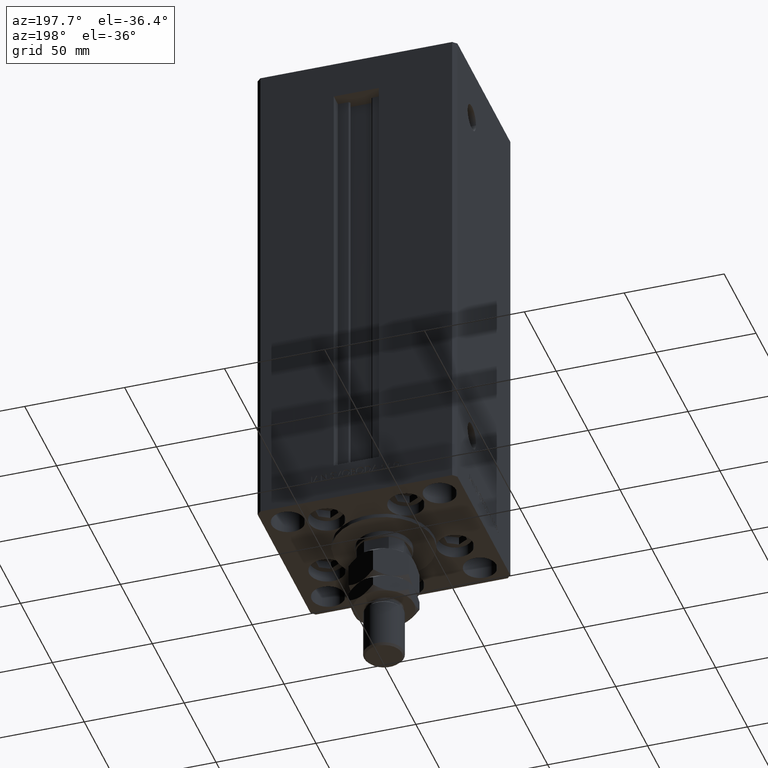
[diagram: clean part render]
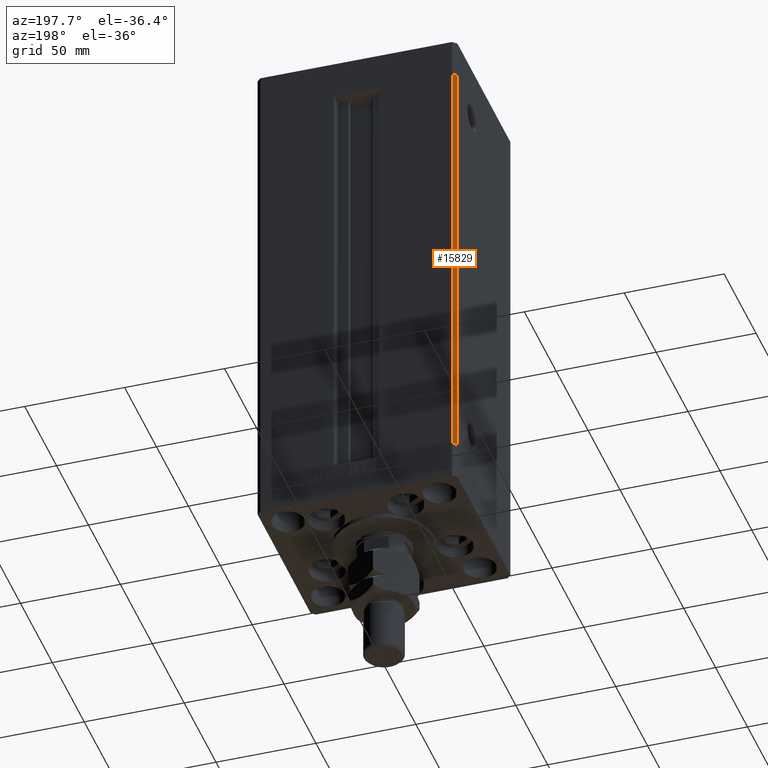
[diagram: same view with one face highlighted and labeled with its STEP entity id]
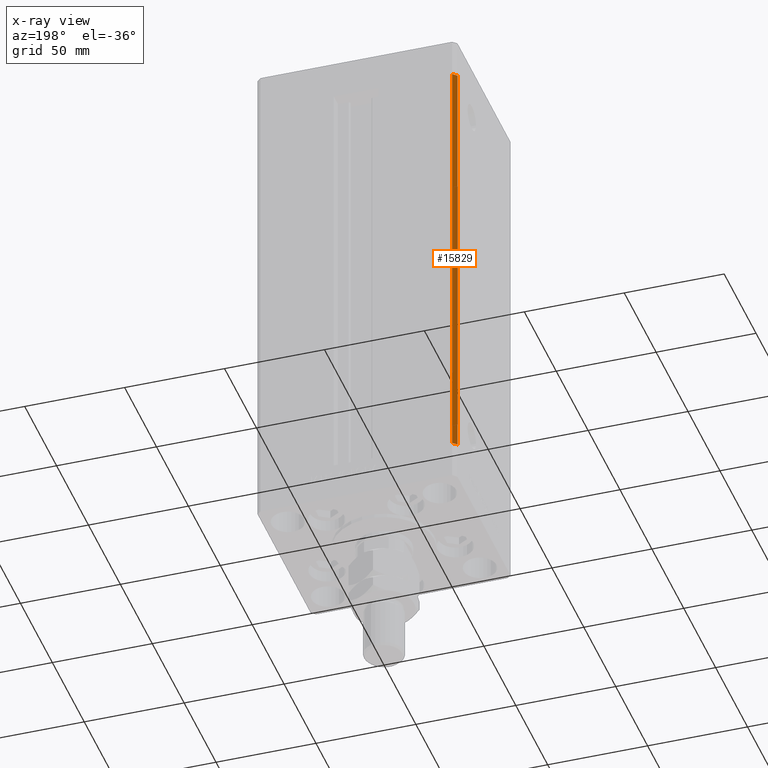
[diagram: x-ray of the same camera — body ghosted, the highlighted face saturated]
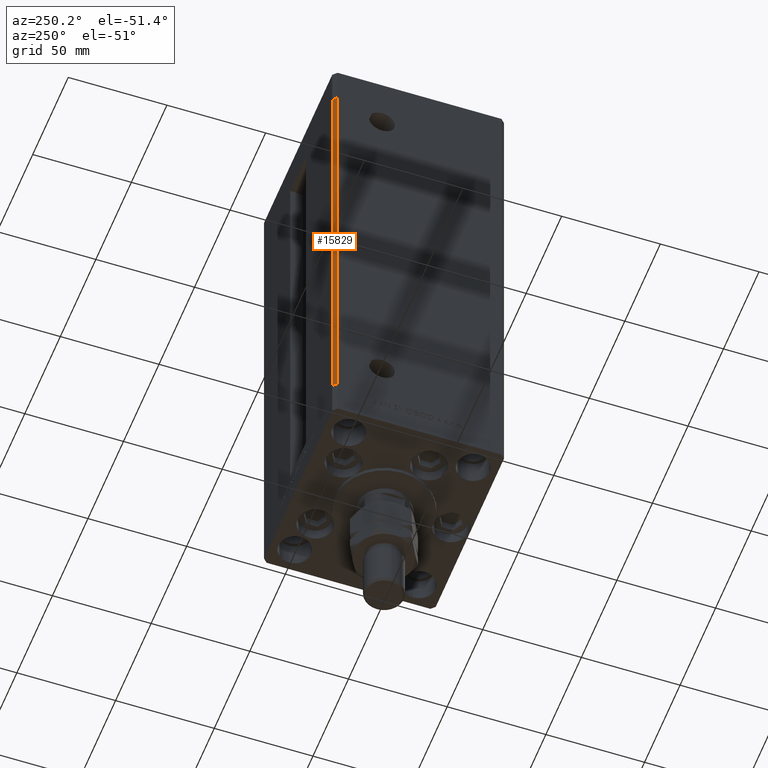
[diagram: same view with one face highlighted and labeled with its STEP entity id]
A machine part, auxiliary view. The second image highlights one B-rep face of the part: STEP entity #15829.
The next image is the same camera in x-ray: the body ghosted, the highlighted face saturated — about 0% of this face is hidden behind the body in this view.
A second angle (auxiliary view) of the same face is appended — the face is thin or edge-on in the first view.
In plain terms, the highlighted planar face has unit normal (0.7071, -0.7071, 0).
Its self-contained STEP definition (entity closure, byte-faithful):
#206 = DIRECTION ( 'NONE',  ( -0.000000000000000000, -0.000000000000000000, -1.000000000000000000 ) ) ;
#952 = CARTESIAN_POINT ( 'NONE',  ( -48.00000000000000711, 43.50000000000000000, 0.000000000000000000 ) ) ;
#1962 = DIRECTION ( 'NONE',  ( 0.7071067811865486830, 0.7071067811865463515, 0.000000000000000000 ) ) ;
#3538 = LINE ( 'NONE', #28088, #33914 ) ;
#5429 = CARTESIAN_POINT ( 'NONE',  ( -50.00000000000001421, 41.49999999999999289, 218.5000000000000000 ) ) ;
#6164 = EDGE_CURVE ( 'NONE', #38918, #44430, #24645, .T. ) ;
#7176 = ORIENTED_EDGE ( 'NONE', *, *, #8260, .F. ) ;
#8260 = EDGE_CURVE ( 'NONE', #38918, #44384, #3538, .T. ) ;
#9793 = DIRECTION ( 'NONE',  ( 0.7071067811865463515, -0.7071067811865486830, 0.000000000000000000 ) ) ;
#12588 = ORIENTED_EDGE ( 'NONE', *, *, #38078, .F. ) ;
#12620 = CARTESIAN_POINT ( 'NONE',  ( -48.00000000000000711, 43.50000000000000000, 218.5000000000000000 ) ) ;
#15829 = ADVANCED_FACE ( 'NONE', ( #17114 ), #32823, .F. ) ;
#16288 = DIRECTION ( 'NONE',  ( -0.000000000000000000, -0.000000000000000000, -1.000000000000000000 ) ) ;
#17114 = FACE_OUTER_BOUND ( 'NONE', #36642, .T. ) ;
#17174 = CARTESIAN_POINT ( 'NONE',  ( -48.00000000000000711, 43.50000000000000000, 0.000000000000000000 ) ) ;
#19459 = DIRECTION ( 'NONE',  ( -0.7071067811865487940, -0.7071067811865463515, 0.000000000000000000 ) ) ;
#20054 = CARTESIAN_POINT ( 'NONE',  ( -50.00000000000001421, 41.49999999999999289, 218.5000000000000000 ) ) ;
#20801 = LINE ( 'NONE', #952, #27130 ) ;
#21442 = VERTEX_POINT ( 'NONE', #35851 ) ;
#21633 = ORIENTED_EDGE ( 'NONE', *, *, #6164, .T. ) ;
#23451 = LINE ( 'NONE', #20054, #23700 ) ;
#23700 = VECTOR ( 'NONE', #206, 1000.000000000000000 ) ;
#24645 = LINE ( 'NONE', #12620, #48039 ) ;
#25654 = CARTESIAN_POINT ( 'NONE',  ( -48.00000000000000711, 43.50000000000000000, 218.5000000000000000 ) ) ;
#27130 = VECTOR ( 'NONE', #29157, 1000.000000000000000 ) ;
#28088 = CARTESIAN_POINT ( 'NONE',  ( -48.00000000000000711, 43.50000000000000000, 218.5000000000000000 ) ) ;
#29157 = DIRECTION ( 'NONE',  ( -0.7071067811865487940, -0.7071067811865463515, 0.000000000000000000 ) ) ;
#32823 = PLANE ( 'NONE',  #51553 ) ;
#33911 = ORIENTED_EDGE ( 'NONE', *, *, #45303, .T. ) ;
#33914 = VECTOR ( 'NONE', #19459, 1000.000000000000000 ) ;
#35851 = CARTESIAN_POINT ( 'NONE',  ( -50.00000000000001421, 41.49999999999999289, 0.000000000000000000 ) ) ;
#36642 = EDGE_LOOP ( 'NONE', ( #33911, #12588, #7176, #21633 ) ) ;
#37256 = CARTESIAN_POINT ( 'NONE',  ( -48.00000000000000711, 43.50000000000000000, 218.5000000000000000 ) ) ;
#38078 = EDGE_CURVE ( 'NONE', #44384, #21442, #23451, .T. ) ;
#38918 = VERTEX_POINT ( 'NONE', #25654 ) ;
#44384 = VERTEX_POINT ( 'NONE', #5429 ) ;
#44430 = VERTEX_POINT ( 'NONE', #17174 ) ;
#45303 = EDGE_CURVE ( 'NONE', #44430, #21442, #20801, .T. ) ;
#48039 = VECTOR ( 'NONE', #16288, 1000.000000000000000 ) ;
#51553 = AXIS2_PLACEMENT_3D ( 'NONE', #37256, #9793, #1962 ) ;